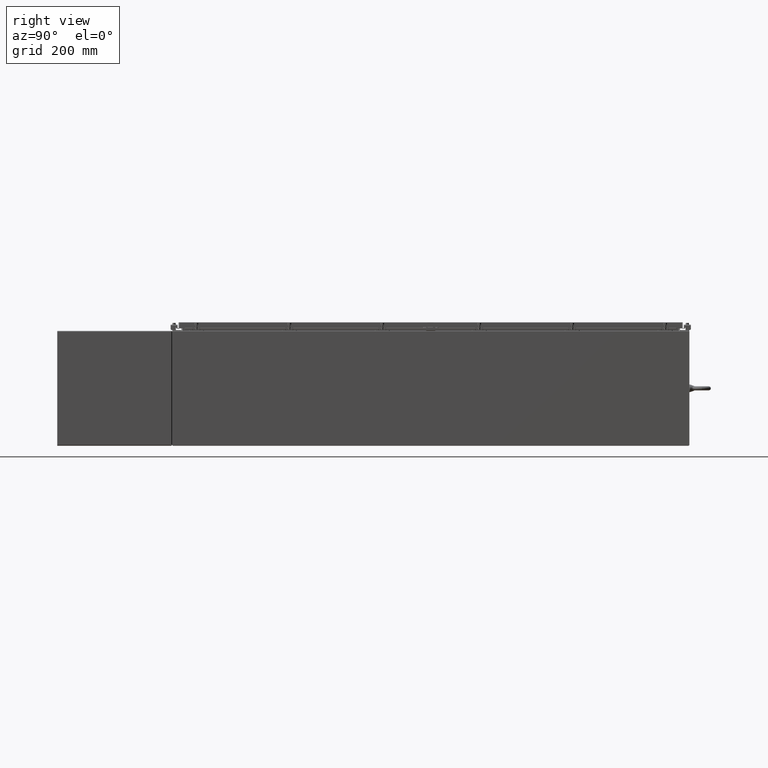
[diagram: clean part render]
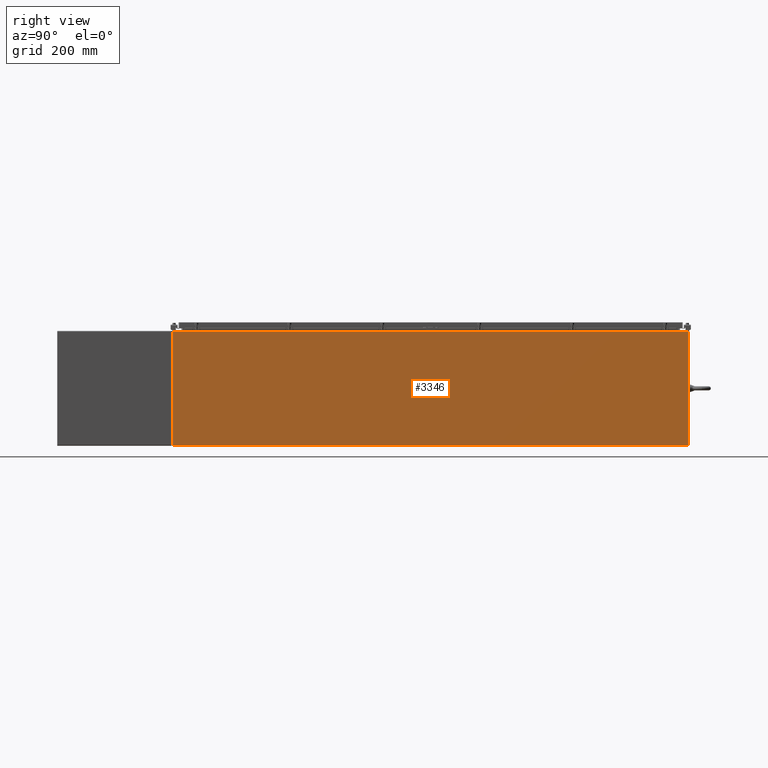
[diagram: same view with one face highlighted and labeled with its STEP entity id]
A machine part, right view. The second image highlights one B-rep face of the part: STEP entity #3346.
In plain terms, the highlighted planar face has unit normal (-1, 0, 0).
Its self-contained STEP definition (entity closure, byte-faithful):
#1229 = CARTESIAN_POINT ( 'NONE',  ( 21.00000000000000400, 0.0000000000000000000, -7.519008994170482200E-014 ) ) ;
#1910 = CARTESIAN_POINT ( 'NONE',  ( 21.00000000000000400, -35.92529999999999300, 0.01299999999999765100 ) ) ;
#3346 = ADVANCED_FACE ( 'NONE', ( #44949 ), #70137, .F. ) ;
#16829 = VERTEX_POINT ( 'NONE', #1910 ) ;
#18885 = VECTOR ( 'NONE', #37441, 39.37007874015748100 ) ;
#19467 = LINE ( 'NONE', #59797, #33351 ) ;
#21008 = VECTOR ( 'NONE', #61253, 39.37007874015748100 ) ;
#21168 = EDGE_CURVE ( 'NONE', #32071, #16829, #34564, .T. ) ;
#22056 = VERTEX_POINT ( 'NONE', #28895 ) ;
#24282 = DIRECTION ( 'NONE',  ( 3.568060775509200700E-015, 0.0000000000000000000, 1.000000000000000000 ) ) ;
#24585 = DIRECTION ( 'NONE',  ( 3.568060775509200700E-015, 0.0000000000000000000, 1.000000000000000000 ) ) ;
#26660 = DIRECTION ( 'NONE',  ( -0.0000000000000000000, -1.000000000000000000, -0.0000000000000000000 ) ) ;
#28895 = CARTESIAN_POINT ( 'NONE',  ( 21.00000000000000400, 35.92530000000000000, 0.01299999999999766100 ) ) ;
#32071 = VERTEX_POINT ( 'NONE', #69745 ) ;
#32295 = AXIS2_PLACEMENT_3D ( 'NONE', #1229, #65580, #24282 ) ;
#33351 = VECTOR ( 'NONE', #24585, 39.37007874015748100 ) ;
#34564 = LINE ( 'NONE', #72331, #18885 ) ;
#34740 = EDGE_LOOP ( 'NONE', ( #36365, #44341, #41092, #57825 ) ) ;
#36365 = ORIENTED_EDGE ( 'NONE', *, *, #72615, .T. ) ;
#37153 = VECTOR ( 'NONE', #26660, 39.37007874015748100 ) ;
#37441 = DIRECTION ( 'NONE',  ( -3.568060775509200700E-015, 0.0000000000000000000, -1.000000000000000000 ) ) ;
#37972 = CARTESIAN_POINT ( 'NONE',  ( 21.00000000000000400, -35.92529999999999300, 0.01299999999999766100 ) ) ;
#41092 = ORIENTED_EDGE ( 'NONE', *, *, #42363, .F. ) ;
#42363 = EDGE_CURVE ( 'NONE', #22056, #16829, #52262, .T. ) ;
#44214 = CARTESIAN_POINT ( 'NONE',  ( 21.00000000000006400, 35.92530000000000000, 15.83760000000000200 ) ) ;
#44341 = ORIENTED_EDGE ( 'NONE', *, *, #21168, .T. ) ;
#44949 = FACE_OUTER_BOUND ( 'NONE', #34740, .T. ) ;
#52262 = LINE ( 'NONE', #37972, #21008 ) ;
#57825 = ORIENTED_EDGE ( 'NONE', *, *, #59508, .T. ) ;
#59508 = EDGE_CURVE ( 'NONE', #22056, #66639, #19467, .T. ) ;
#59797 = CARTESIAN_POINT ( 'NONE',  ( 21.00000000000000400, 35.92530000000000000, -7.519008994170482200E-014 ) ) ;
#61253 = DIRECTION ( 'NONE',  ( -0.0000000000000000000, -1.000000000000000000, -0.0000000000000000000 ) ) ;
#65580 = DIRECTION ( 'NONE',  ( -1.000000000000000000, 0.0000000000000000000, 3.568060775509200700E-015 ) ) ;
#66639 = VERTEX_POINT ( 'NONE', #66926 ) ;
#66926 = CARTESIAN_POINT ( 'NONE',  ( 21.00000000000006400, 35.92530000000000000, 15.83760000000000200 ) ) ;
#69745 = CARTESIAN_POINT ( 'NONE',  ( 21.00000000000006000, -35.92529999999999300, 15.83760000000000200 ) ) ;
#70137 = PLANE ( 'NONE',  #32295 ) ;
#70404 = LINE ( 'NONE', #44214, #37153 ) ;
#72331 = CARTESIAN_POINT ( 'NONE',  ( 21.00000000000000400, -35.92529999999999300, -7.519008994170482200E-014 ) ) ;
#72615 = EDGE_CURVE ( 'NONE', #66639, #32071, #70404, .T. ) ;